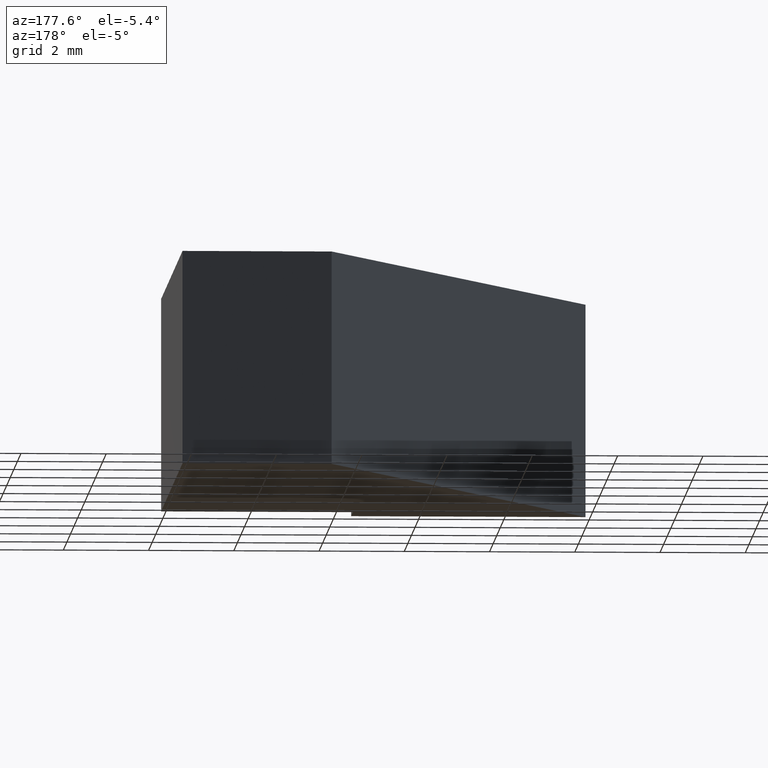
[diagram: clean part render]
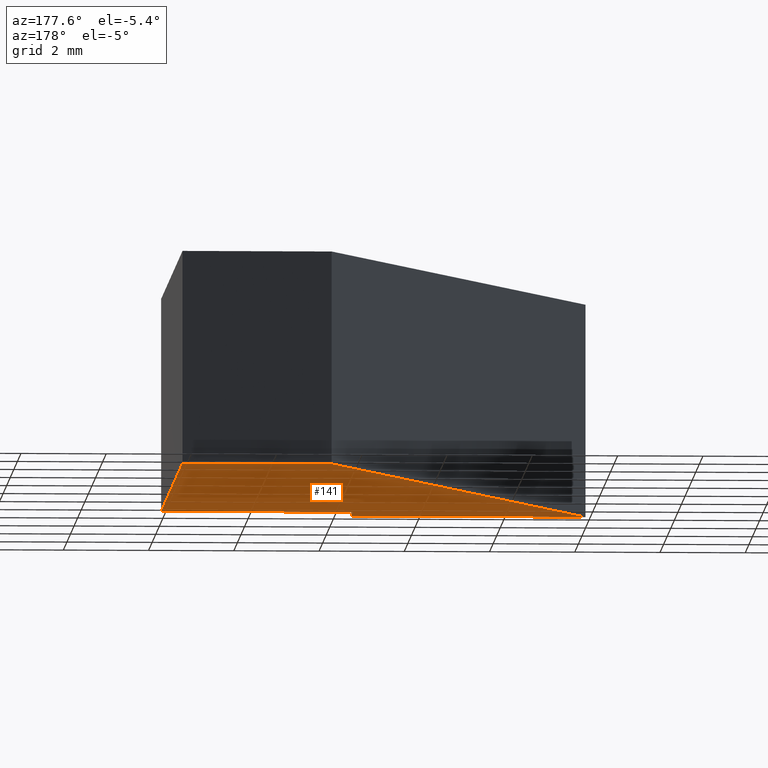
[diagram: same view with one face highlighted and labeled with its STEP entity id]
A machine part, auxiliary view. The second image highlights one B-rep face of the part: STEP entity #141.
In plain terms, the highlighted planar face has unit normal (0, 0, 1).
Its self-contained STEP definition (entity closure, byte-faithful):
#15=FACE_OUTER_BOUND('',#23,.T.);
#23=EDGE_LOOP('',(#97,#98,#99,#100,#101,#102));
#31=LINE('',#220,#49);
#32=LINE('',#222,#50);
#33=LINE('',#224,#51);
#34=LINE('',#226,#52);
#35=LINE('',#228,#53);
#36=LINE('',#229,#54);
#49=VECTOR('',#184,10.);
#50=VECTOR('',#185,10.);
#51=VECTOR('',#186,10.);
#52=VECTOR('',#187,10.);
#53=VECTOR('',#188,10.);
#54=VECTOR('',#189,10.);
#67=VERTEX_POINT('',#218);
#68=VERTEX_POINT('',#219);
#69=VERTEX_POINT('',#221);
#70=VERTEX_POINT('',#223);
#71=VERTEX_POINT('',#225);
#72=VERTEX_POINT('',#227);
#79=EDGE_CURVE('',#67,#68,#31,.T.);
#80=EDGE_CURVE('',#69,#67,#32,.T.);
#81=EDGE_CURVE('',#70,#69,#33,.T.);
#82=EDGE_CURVE('',#71,#70,#34,.T.);
#83=EDGE_CURVE('',#72,#71,#35,.T.);
#84=EDGE_CURVE('',#68,#72,#36,.T.);
#97=ORIENTED_EDGE('',*,*,#79,.F.);
#98=ORIENTED_EDGE('',*,*,#80,.F.);
#99=ORIENTED_EDGE('',*,*,#81,.F.);
#100=ORIENTED_EDGE('',*,*,#82,.F.);
#101=ORIENTED_EDGE('',*,*,#83,.F.);
#102=ORIENTED_EDGE('',*,*,#84,.F.);
#133=PLANE('',#172);
#141=ADVANCED_FACE('',(#15),#133,.F.);
#172=AXIS2_PLACEMENT_3D('',#217,#182,#183);
#182=DIRECTION('center_axis',(0.,0.,1.));
#183=DIRECTION('ref_axis',(1.,0.,0.));
#184=DIRECTION('',(3.17128695075844E-16,1.,0.));
#185=DIRECTION('',(1.,-1.2335811384724E-15,0.));
#186=DIRECTION('',(0.,1.,0.));
#187=DIRECTION('',(1.,1.22464679914735E-16,0.));
#188=DIRECTION('',(-0.447213595499958,-0.894427190999916,0.));
#189=DIRECTION('',(-1.,-6.34413156928661E-16,0.));
#217=CARTESIAN_POINT('Origin',(-3.86827443830097,5.58004109975358,-2.5));
#218=CARTESIAN_POINT('',(-3.80554434091013E-15,0.999999999999996,-2.5));
#219=CARTESIAN_POINT('',(0.,13.,-2.5));
#220=CARTESIAN_POINT('',(0.,13.,-2.5));
#221=CARTESIAN_POINT('',(-4.49999999999999,1.,-2.5));
#222=CARTESIAN_POINT('',(-3.80554434091013E-15,0.999999999999996,-2.5));
#223=CARTESIAN_POINT('',(-4.49999999999999,1.96034875673415E-15,-2.5));
#224=CARTESIAN_POINT('',(-4.49999999999999,1.,-2.5));
#225=CARTESIAN_POINT('',(-10.,1.2867930172031E-15,-2.5));
#226=CARTESIAN_POINT('',(-4.49999999999999,1.96034875673415E-15,-2.5));
#227=CARTESIAN_POINT('',(-3.5,13.,-2.5));
#228=CARTESIAN_POINT('',(-10.,1.2867930172031E-15,-2.5));
#229=CARTESIAN_POINT('',(-3.5,13.,-2.5));